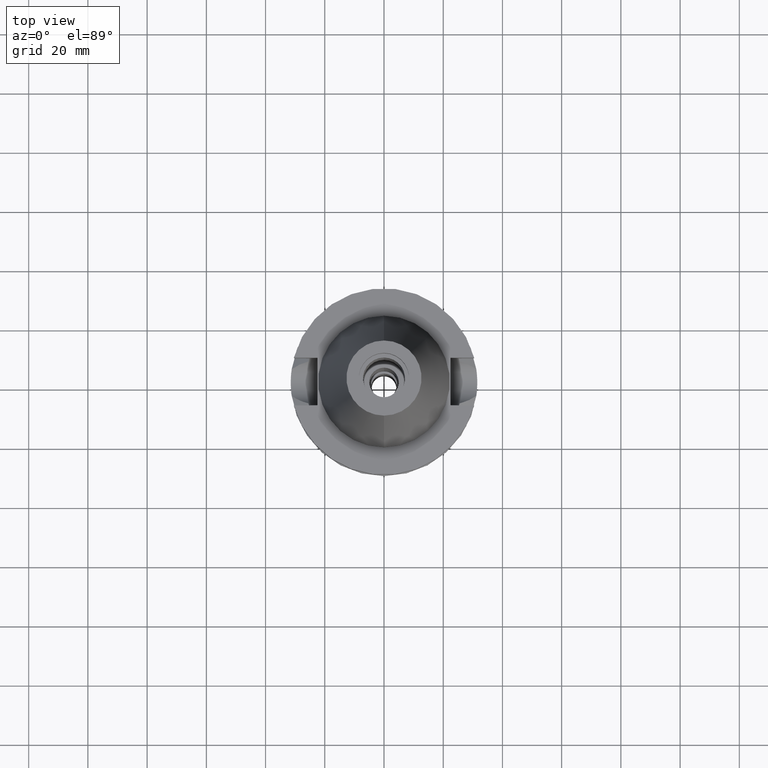
[diagram: clean part render]
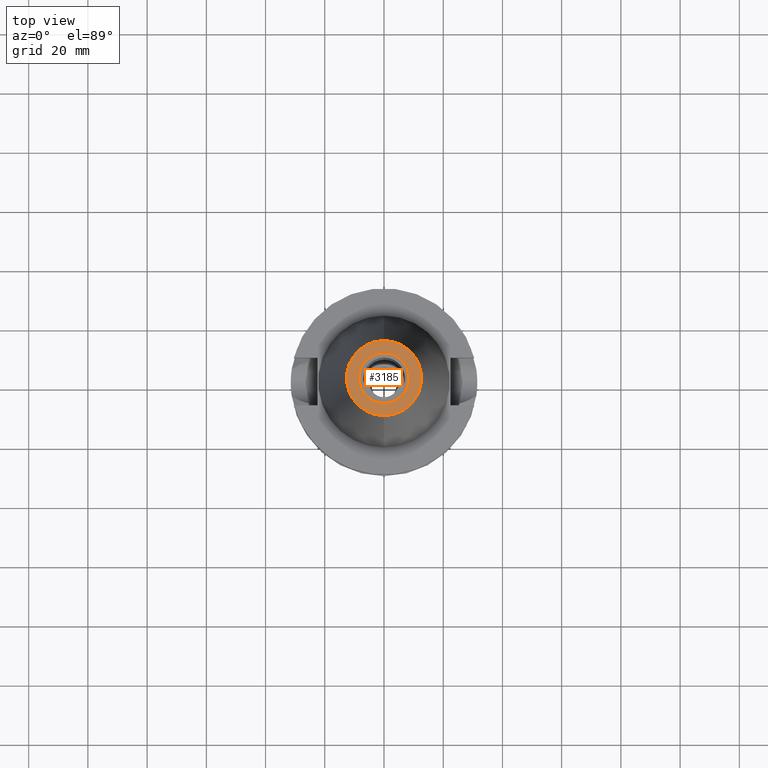
[diagram: same view with one face highlighted and labeled with its STEP entity id]
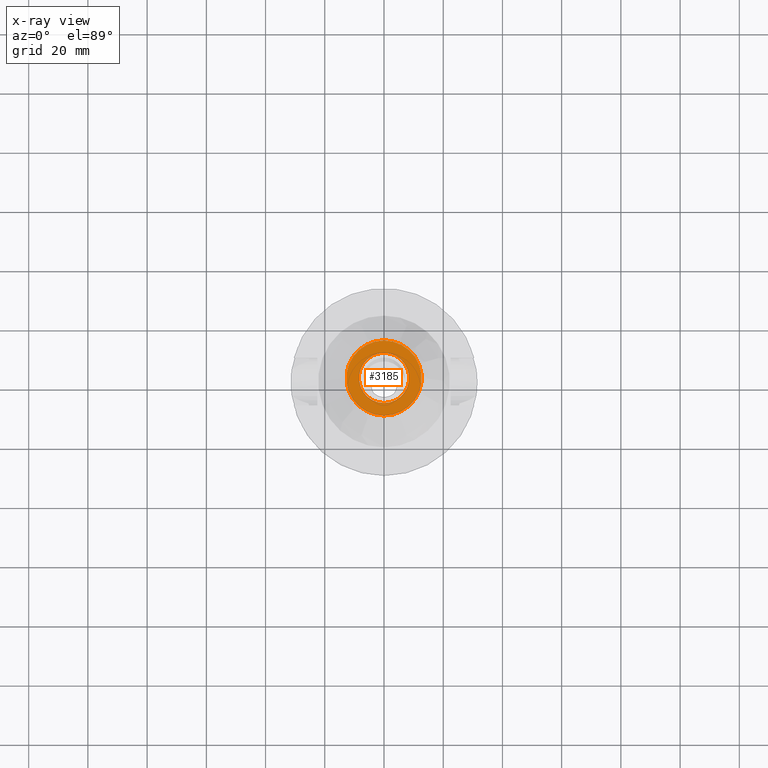
[diagram: x-ray of the same camera — body ghosted, the highlighted face saturated]
A machine part, top view. The second image highlights one B-rep face of the part: STEP entity #3185.
The next image is the same camera in x-ray: the body ghosted, the highlighted face saturated — about 0% of this face is hidden behind the body in this view.
In plain terms, the highlighted planar face has unit normal (0, 0, -1).
Its self-contained STEP definition (entity closure, byte-faithful):
#7 = DIRECTION ( 'NONE',  ( 0.0000000000000000000, 0.0000000000000000000, 1.000000000000000000 ) ) ;
#49 = EDGE_CURVE ( 'NONE', #799, #735, #2992, .T. ) ;
#192 = DIRECTION ( 'NONE',  ( 0.0000000000000000000, 1.000000000000000000, 0.0000000000000000000 ) ) ;
#277 = EDGE_CURVE ( 'NONE', #735, #799, #574, .T. ) ;
#487 = CARTESIAN_POINT ( 'NONE',  ( 0.0000000000000000000, 1.625106302469000024E-14, 65.40000000000000568 ) ) ;
#574 = CIRCLE ( 'NONE', #1051, 12.68766899429999917 ) ;
#658 = CARTESIAN_POINT ( 'NONE',  ( 0.0000000000000000000, 2.025565805790000122E-14, 65.40000000000000568 ) ) ;
#714 = CARTESIAN_POINT ( 'NONE',  ( 0.0000000000000000000, -8.500000000000000000, 65.40000000000000568 ) ) ;
#735 = VERTEX_POINT ( 'NONE', #768 ) ;
#768 = CARTESIAN_POINT ( 'NONE',  ( 0.0000000000000000000, 12.68766899429999917, 65.40000000000000568 ) ) ;
#799 = VERTEX_POINT ( 'NONE', #1954 ) ;
#897 = DIRECTION ( 'NONE',  ( 0.0000000000000000000, -1.000000000000000000, 0.0000000000000000000 ) ) ;
#1049 = CIRCLE ( 'NONE', #3107, 8.500000000000000000 ) ;
#1051 = AXIS2_PLACEMENT_3D ( 'NONE', #487, #2723, #192 ) ;
#1177 = DIRECTION ( 'NONE',  ( 0.0000000000000000000, 0.0000000000000000000, -1.000000000000000000 ) ) ;
#1306 = DIRECTION ( 'NONE',  ( 0.0000000000000000000, 0.0000000000000000000, 1.000000000000000000 ) ) ;
#1447 = EDGE_LOOP ( 'NONE', ( #1616, #3522 ) ) ;
#1616 = ORIENTED_EDGE ( 'NONE', *, *, #2572, .F. ) ;
#1642 = CIRCLE ( 'NONE', #2412, 8.500000000000000000 ) ;
#1702 = CARTESIAN_POINT ( 'NONE',  ( 0.0000000000000000000, 1.625106302469000024E-14, 65.40000000000000568 ) ) ;
#1788 = DIRECTION ( 'NONE',  ( 0.0000000000000000000, 0.0000000000000000000, -1.000000000000000000 ) ) ;
#1883 = EDGE_CURVE ( 'NONE', #2025, #2671, #1049, .T. ) ;
#1954 = CARTESIAN_POINT ( 'NONE',  ( 0.0000000000000000000, -12.68766899429999917, 65.40000000000000568 ) ) ;
#2025 = VERTEX_POINT ( 'NONE', #714 ) ;
#2061 = EDGE_LOOP ( 'NONE', ( #2477, #3501 ) ) ;
#2063 = FACE_BOUND ( 'NONE', #1447, .T. ) ;
#2412 = AXIS2_PLACEMENT_3D ( 'NONE', #2658, #1306, #3487 ) ;
#2433 = FACE_OUTER_BOUND ( 'NONE', #2061, .T. ) ;
#2477 = ORIENTED_EDGE ( 'NONE', *, *, #277, .F. ) ;
#2572 = EDGE_CURVE ( 'NONE', #2671, #2025, #1642, .T. ) ;
#2600 = CARTESIAN_POINT ( 'NONE',  ( 0.0000000000000000000, 2.162971176654000071E-14, 65.40000000000000568 ) ) ;
#2658 = CARTESIAN_POINT ( 'NONE',  ( 0.0000000000000000000, 2.162971176654000071E-14, 65.40000000000000568 ) ) ;
#2671 = VERTEX_POINT ( 'NONE', #2716 ) ;
#2716 = CARTESIAN_POINT ( 'NONE',  ( 0.0000000000000000000, 8.500000000000000000, 65.40000000000000568 ) ) ;
#2723 = DIRECTION ( 'NONE',  ( 0.0000000000000000000, 0.0000000000000000000, -1.000000000000000000 ) ) ;
#2909 = DIRECTION ( 'NONE',  ( 0.0000000000000000000, -1.000000000000000000, 0.0000000000000000000 ) ) ;
#2992 = CIRCLE ( 'NONE', #3049, 12.68766899429999917 ) ;
#3049 = AXIS2_PLACEMENT_3D ( 'NONE', #1702, #1177, #897 ) ;
#3107 = AXIS2_PLACEMENT_3D ( 'NONE', #2600, #7, #3454 ) ;
#3185 = ADVANCED_FACE ( 'NONE', ( #2433, #2063 ), #3188, .F. ) ;
#3188 = PLANE ( 'NONE',  #3265 ) ;
#3265 = AXIS2_PLACEMENT_3D ( 'NONE', #658, #1788, #2909 ) ;
#3454 = DIRECTION ( 'NONE',  ( 0.0000000000000000000, -1.000000000000000000, 0.0000000000000000000 ) ) ;
#3487 = DIRECTION ( 'NONE',  ( 0.0000000000000000000, 1.000000000000000000, 0.0000000000000000000 ) ) ;
#3501 = ORIENTED_EDGE ( 'NONE', *, *, #49, .F. ) ;
#3522 = ORIENTED_EDGE ( 'NONE', *, *, #1883, .F. ) ;